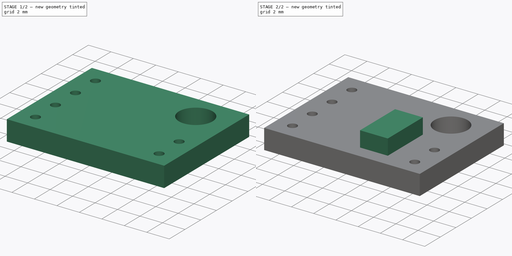
[diagram: build sequence overview — one tinted view per stage of 2, left to right]
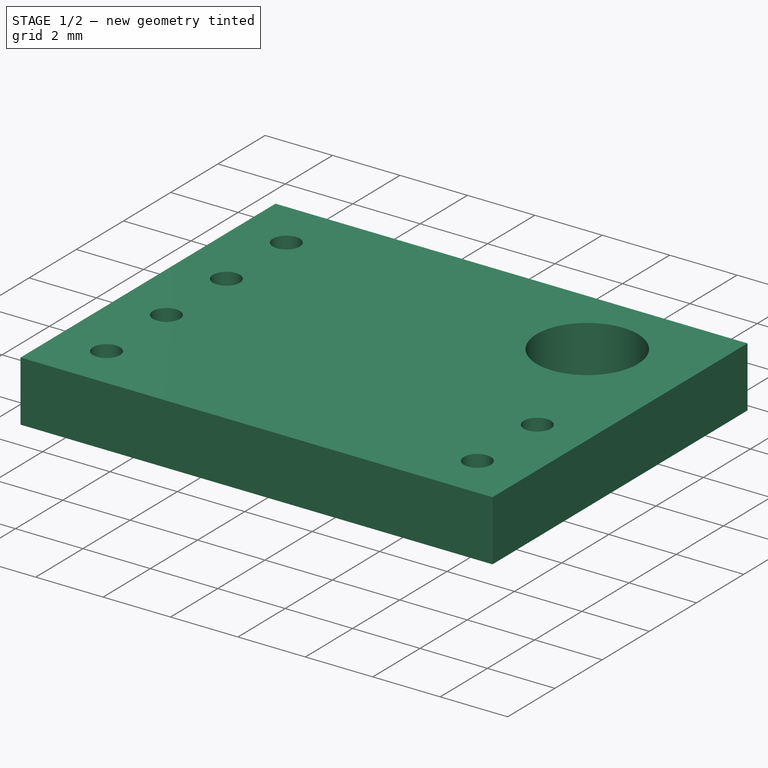
[diagram: stage 1 of 2 — iso view after this stage's code; geometry added in this stage tinted green]
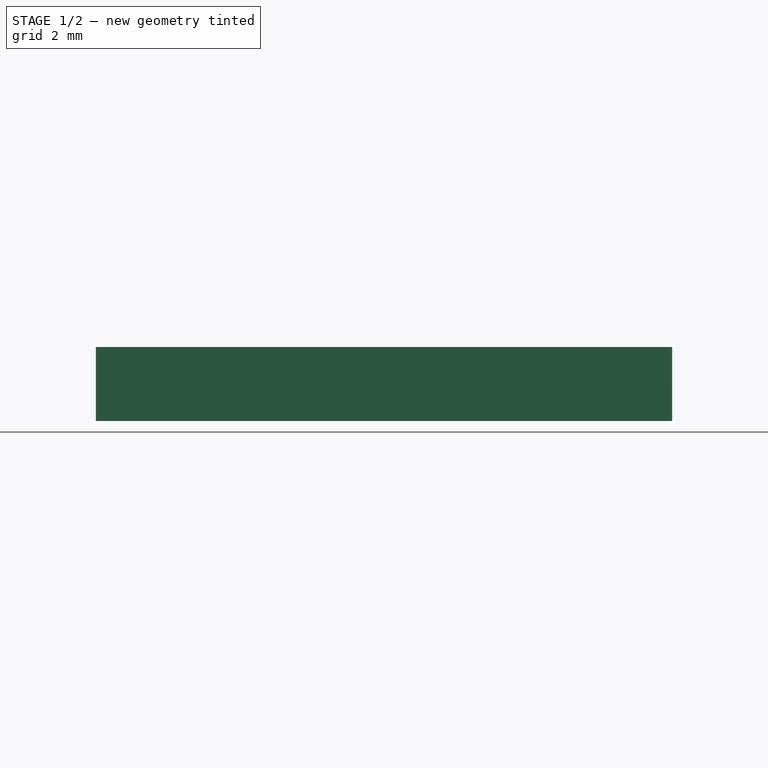
[diagram: stage 1 of 2 — front view after this stage's code; geometry added in this stage tinted green]
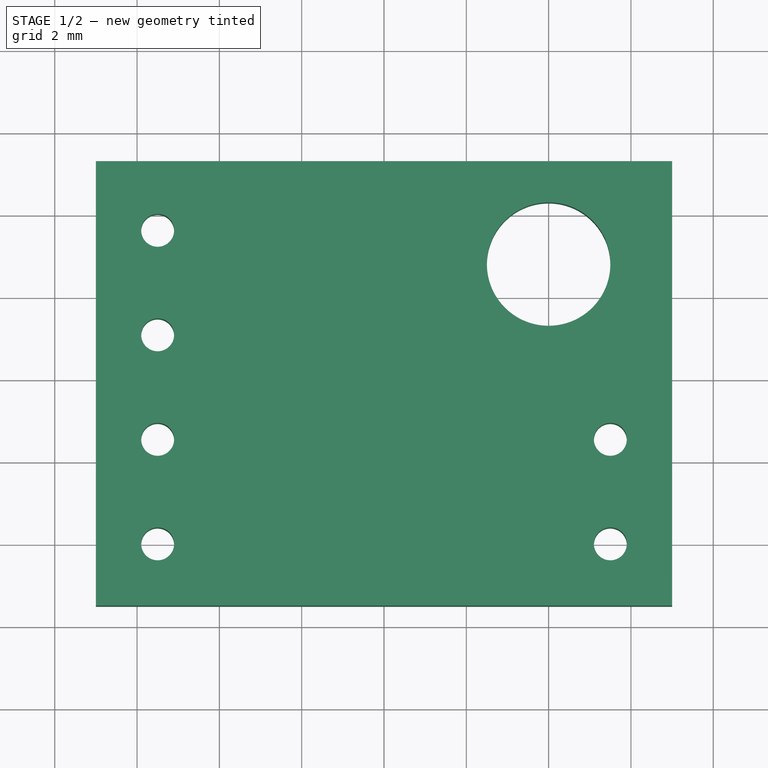
[diagram: stage 1 of 2 — top view after this stage's code; geometry added in this stage tinted green]
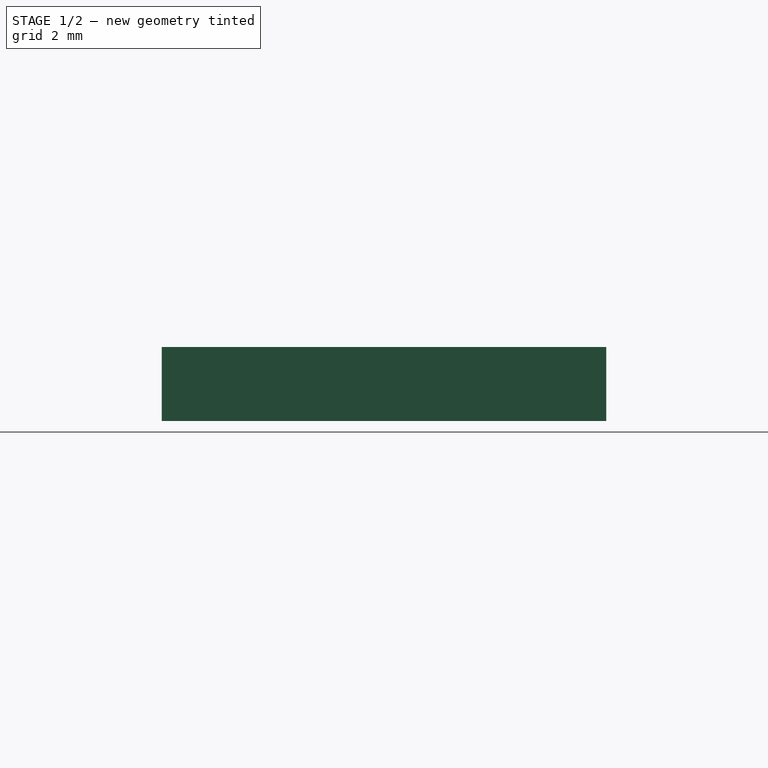
[diagram: stage 1 of 2 — right view after this stage's code; geometry added in this stage tinted green]
FCSTD DOCUMENT  (FreeCAD 1.0R39319 (Git))
Label: GYUL53L0X
License: All rights reserved
LicenseURL: https://en.wikipedia.org/wiki/All_rights_reserved
objects: Sketcher::SketchObject×2, PartDesign::Pad×2, PartDesign::Body×1, App::Part×1
note: 11 computed .brp shape members not serialized (recipe doc carries the construction recipe); baked Part::Feature solids carry a one-line shape summary decoded from their .brp

FEATURE [Sketcher::SketchObject] Sketch
  ArcFitTolerance = 1e-06
  AttachmentSupport = -> [XY_Plane]
  FullyConstrained = true
  MakeInternals = false
  MapMode = 5
  sketch-geometry (21):
    g0: LineSegment StartX=-9 StartY=7.3 StartZ=0 EndX=-9 EndY=-3.5 EndZ=0
    g1: LineSegment StartX=-9 StartY=-3.5 StartZ=0 EndX=5 EndY=-3.5 EndZ=0
    g2: LineSegment StartX=5 StartY=-3.5 StartZ=0 EndX=5 EndY=7.3 EndZ=0
    g3: LineSegment StartX=5 StartY=7.3 StartZ=0 EndX=-9 EndY=7.3 EndZ=0
    g4: Circle CenterX=2 CenterY=4.8 CenterZ=0 NormalX=0 NormalY=0 NormalZ=1 AngleXU=0 Radius=1.5
    g5: Circle CenterX=3.5 CenterY=0.54 CenterZ=0 NormalX=0 NormalY=0 NormalZ=1 AngleXU=0 Radius=0.4
    g6: Circle CenterX=3.5 CenterY=-2 CenterZ=0 NormalX=0 NormalY=0 NormalZ=1 AngleXU=0 Radius=0.4
    g7: Circle CenterX=-7.5 CenterY=5.62 CenterZ=0 NormalX=0 NormalY=0 NormalZ=1 AngleXU=0 Radius=0.4
    g8: Circle CenterX=-7.5 CenterY=3.08 CenterZ=0 NormalX=0 NormalY=0 NormalZ=1 AngleXU=0 Radius=0.4
    g9: Circle CenterX=-7.5 CenterY=0.54 CenterZ=0 NormalX=0 NormalY=0 NormalZ=1 AngleXU=0 Radius=0.4
    g10: Circle CenterX=-7.5 CenterY=-2 CenterZ=0 NormalX=0 NormalY=0 NormalZ=1 AngleXU=0 Radius=0.4
    g11: LineSegment [constr] StartX=-7.5 StartY=5.62 StartZ=0 EndX=-7.5 EndY=3.08 EndZ=0
    g12: LineSegment [constr] StartX=-7.5 StartY=3.08 StartZ=0 EndX=-7.5 EndY=0.54 EndZ=0
    g13: LineSegment [constr] StartX=-7.5 StartY=0.54 StartZ=0 EndX=-7.5 EndY=-2 EndZ=0
    g14: LineSegment [constr] StartX=3.5 StartY=0.54 StartZ=0 EndX=3.5 EndY=-2 EndZ=0
    g15: LineSegment [constr] StartX=-1.25 StartY=2.25 StartZ=0 EndX=-1.25 EndY=-2.25 EndZ=0
    g16: LineSegment [constr] StartX=-1.25 StartY=-2.25 StartZ=0 EndX=1.25 EndY=-2.25 EndZ=0
    g17: LineSegment [constr] StartX=1.25 StartY=-2.25 StartZ=0 EndX=1.25 EndY=2.25 EndZ=0
    g18: LineSegment [constr] StartX=1.25 StartY=2.25 StartZ=0 EndX=-1.25 EndY=2.25 EndZ=0
    g19: LineSegment [constr] StartX=-1.25 StartY=2.25 StartZ=0 EndX=1.25 EndY=-2.25 EndZ=0
    g20: GeomPoint [constr] X=0 Y=0 Z=0
  constraints (55):
    c: Coincident(g0,g1)
    c: Coincident(g1,g2)
    c: Coincident(g2,g3)
    c: Coincident(g3,g0)
    c: Vertical(g0)
    c: Vertical(g2)
    c: Horizontal(g1)
    c: Horizontal(g3)
    c: DistanceX(g3,g3) = 14
    c: DistanceY(g2,g2) = 10.8
    c: Distance(g4,g2) = 3
    c: Distance(g4,g3) = 2.5
    c: Vertical(g10,g9)
    c: Vertical(g9,g8)
    c: Vertical(g8,g7)
    c: Equal(g7,g8)
    c: Equal(g8,g9)
    c: Equal(g9,g10)
    c: Equal(g10,g5)
    c: Equal(g5,g6)
    c: Coincident(g11,g7)
    c: Coincident(g11,g8)
    c: Coincident(g12,g8)
    c: Coincident(g12,g9)
    c: Coincident(g13,g9)
    c: Coincident(g13,g10)
    c: Coincident(g14,g5)
    c: Coincident(g14,g6)
    c: Diameter(g5) = 0.8
    c: Diameter(g4) = 3
    c: Vertical(g14)
    c: DistanceY(g14,g14) = 2.54
    c: Equal(g14,g13)
    c: Equal(g13,g12)
    c: Equal(g12,g11)
    c: Distance(g10,g1) = 1.5
    c: Horizontal(g6,g10)
    c: Coincident(g15,g16)
    c: Coincident(g16,g17)
    c: Coincident(g17,g18)
    c: Coincident(g18,g15)
    c: Vertical(g15)
    c: Vertical(g17)
    c: Horizontal(g16)
    c: Horizontal(g18)
    c: DistanceY(g15,g15) = 4.5
    c: DistanceX(g18,g18) = 2.5
    c: Coincident(g19,g15)
    c: Coincident(g19,g16)
    c: Symmetric(g19,g19,g20)
    c: Coincident(g20,g-1)
    c: DistanceX(g6,g1) = 1.5
    c: DistanceX(g0,g10) = 1.5
    c: DistanceY(g1,g20) = 3.5
    c: Distance(g20,g2) = 5
FEATURE [PartDesign::Pad] Pad
  Direction = (0,0,1)
  Length = 1.8
  Length2 = 10
  Profile = -> Sketch
  ReferenceAxis = -> Sketch [N_Axis]
  Refine = true
  Suppressed = false
  Type = 0
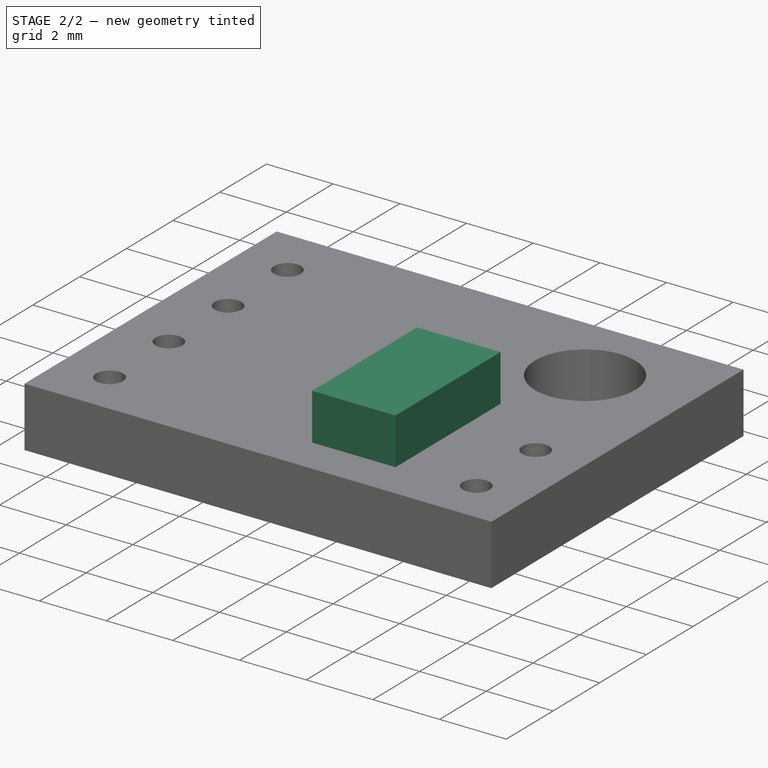
[diagram: stage 2 of 2 — iso view after this stage's code; geometry added in this stage tinted green]
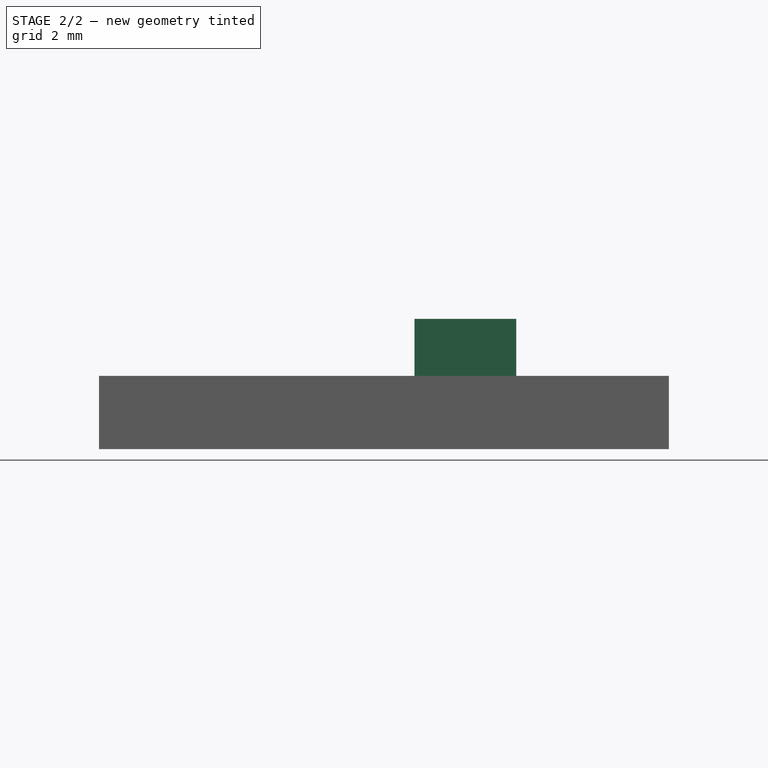
[diagram: stage 2 of 2 — front view after this stage's code; geometry added in this stage tinted green]
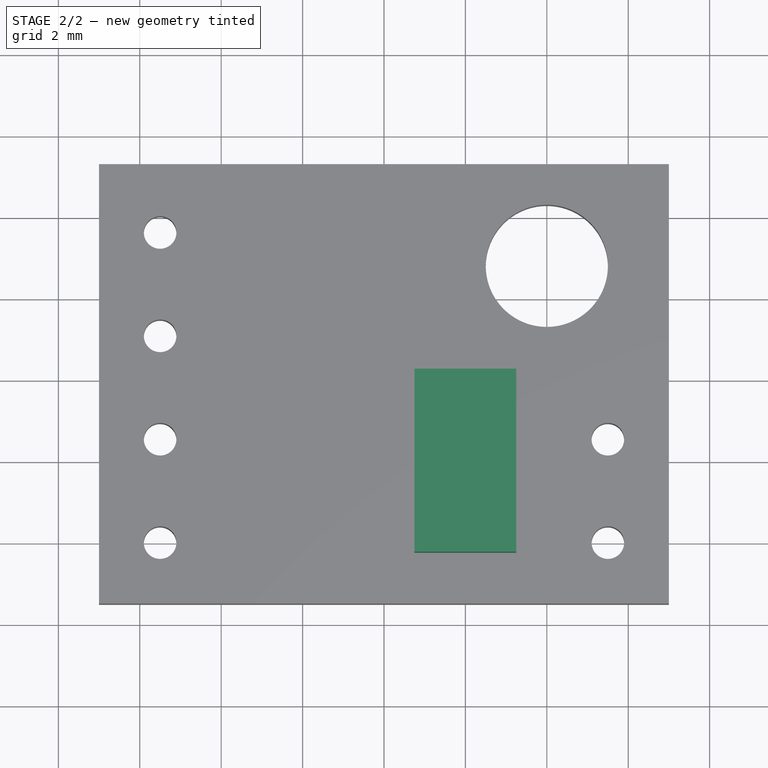
[diagram: stage 2 of 2 — top view after this stage's code; geometry added in this stage tinted green]
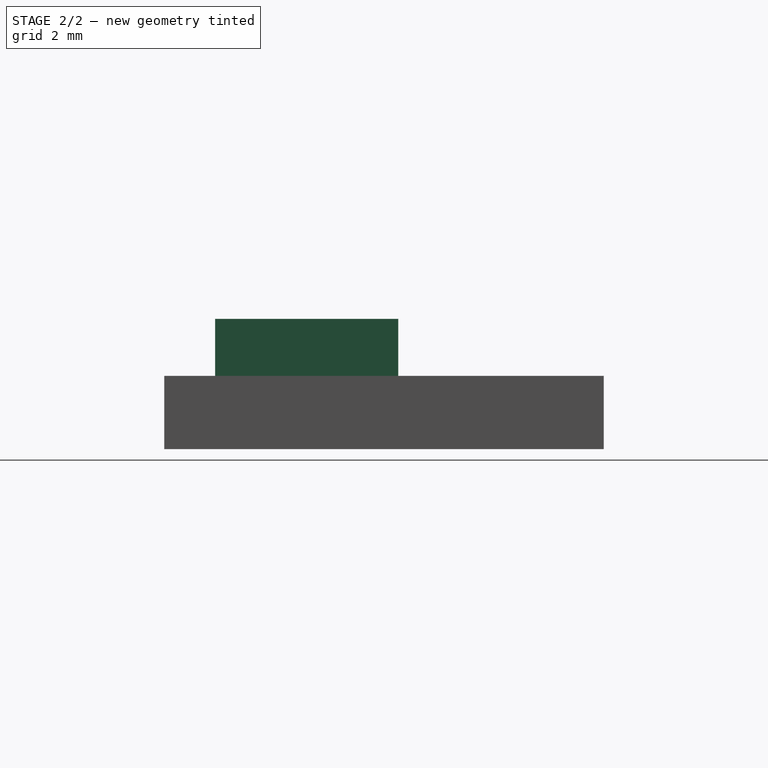
[diagram: stage 2 of 2 — right view after this stage's code; geometry added in this stage tinted green]
FEATURE [Sketcher::SketchObject] Sketch001
  ArcFitTolerance = 1e-06
  AttachmentSupport = -> [Pad]
  FullyConstrained = true
  MakeInternals = false
  MapMode = 5
  Placement = pos=(0,0,1.8) rot=(0,0,1;0rad)
  sketch-geometry (6):
    g0: LineSegment StartX=-1.25 StartY=2.25 StartZ=0 EndX=-1.25 EndY=-2.25 EndZ=0
    g1: LineSegment StartX=-1.25 StartY=-2.25 StartZ=0 EndX=1.25 EndY=-2.25 EndZ=0
    g2: LineSegment StartX=1.25 StartY=-2.25 StartZ=0 EndX=1.25 EndY=2.25 EndZ=0
    g3: LineSegment StartX=1.25 StartY=2.25 StartZ=0 EndX=-1.25 EndY=2.25 EndZ=0
    g4: LineSegment [constr] StartX=-1.25 StartY=2.25 StartZ=0 EndX=1.25 EndY=-2.25 EndZ=0
    g5: GeomPoint X=0 Y=0 Z=0
  constraints (14):
    c: Coincident(g0,g1)
    c: Coincident(g1,g2)
    c: Coincident(g2,g3)
    c: Coincident(g3,g0)
    c: Vertical(g0)
    c: Vertical(g2)
    c: Horizontal(g1)
    c: Horizontal(g3)
    c: Coincident(g4,g0)
    c: Coincident(g4,g1)
    c: Symmetric(g4,g4,g5)
    c: Coincident(g5,g-1)
    c: Distance(g3,g3) = 2.5
    c: DistanceY(g0,g0) = 4.5
FEATURE [PartDesign::Pad] Pad001
  BaseFeature = -> Pad
  Direction = (0,0,1)
  Length = 1.4
  Length2 = 10
  Profile = -> Sketch001
  ReferenceAxis = -> Sketch001 [N_Axis]
  Refine = true
  Suppressed = false
  Type = 0
FEATURE [PartDesign::Body] Body
  AllowCompound = false
  Group = -> [Sketch,Pad,Sketch001,Pad001]
  Origin = -> Origin
  Tip = -> Pad001
FEATURE [App::Part] Part  label="GYUL53LOX"
  Group = -> [Body]
  Origin = -> Origin001
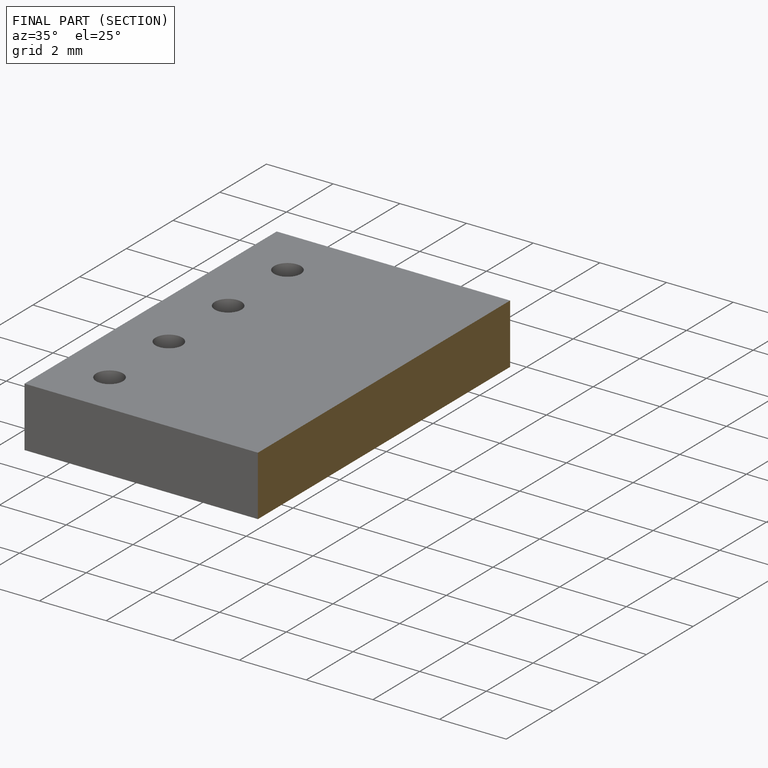
[diagram: finished part — half-section view (interior)]
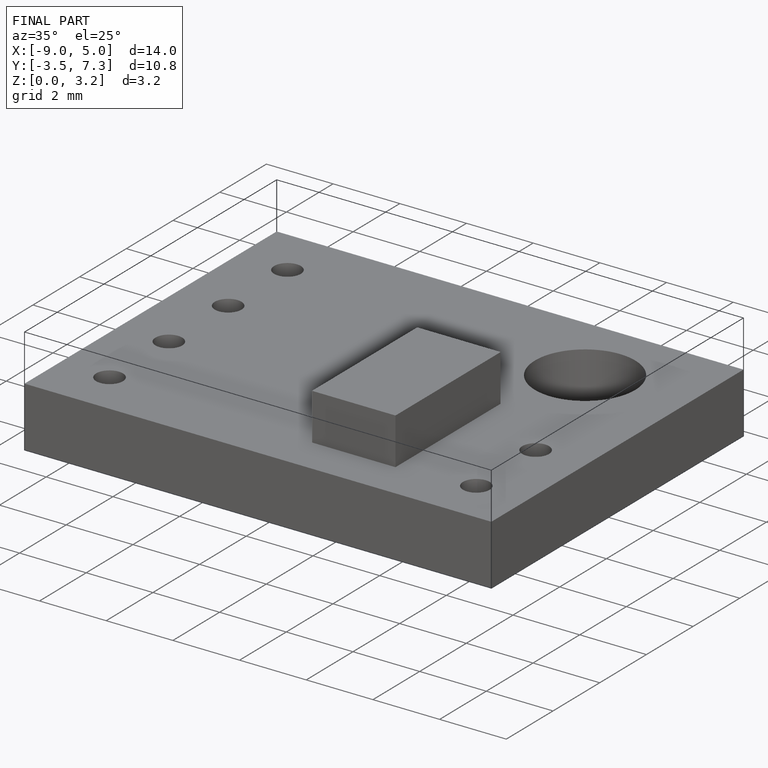
[diagram: finished part — iso view with bounding-box wireframe]
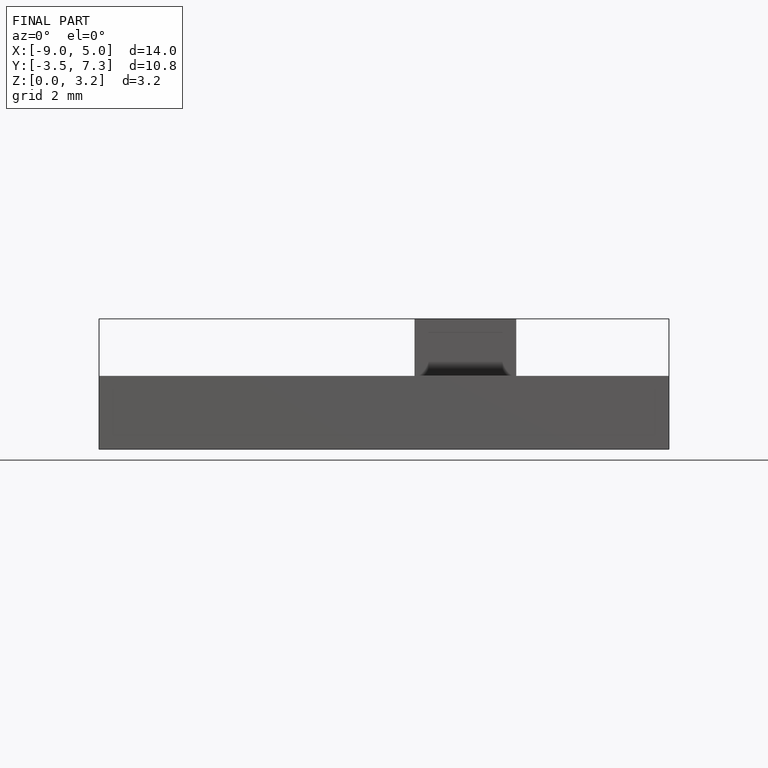
[diagram: finished part — front view with bounding-box wireframe]
